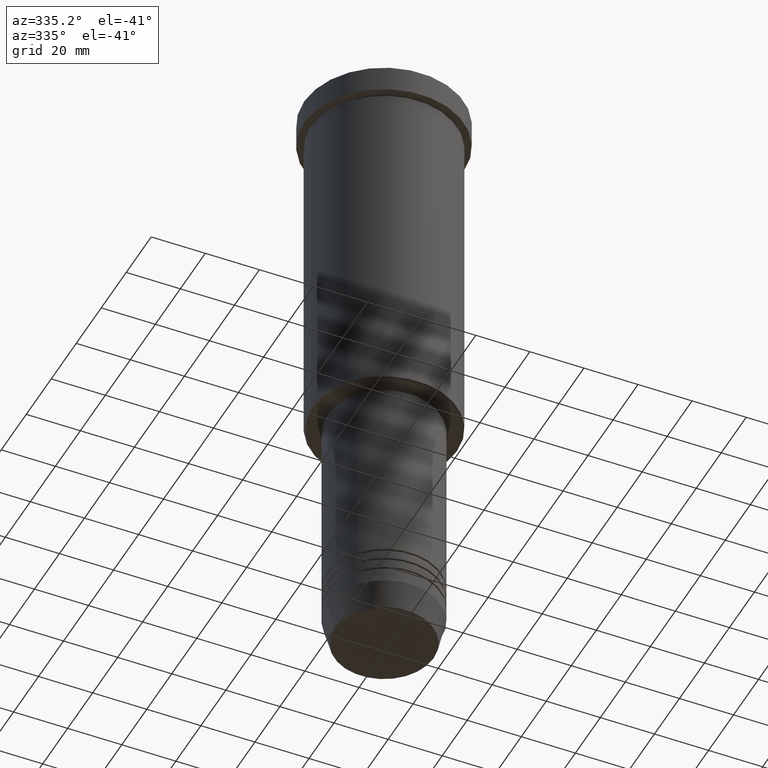
[diagram: clean part render]
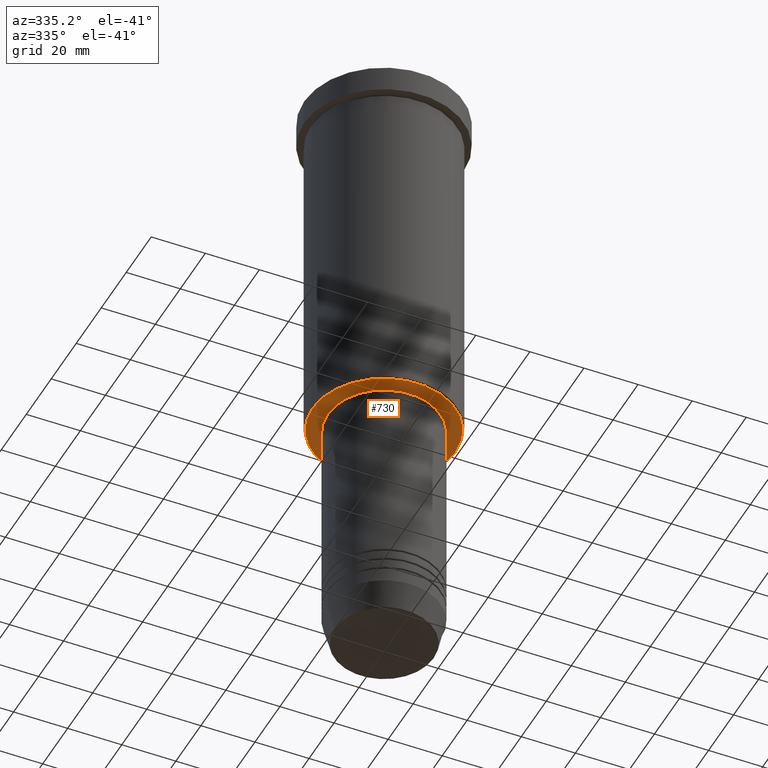
[diagram: same view with one face highlighted and labeled with its STEP entity id]
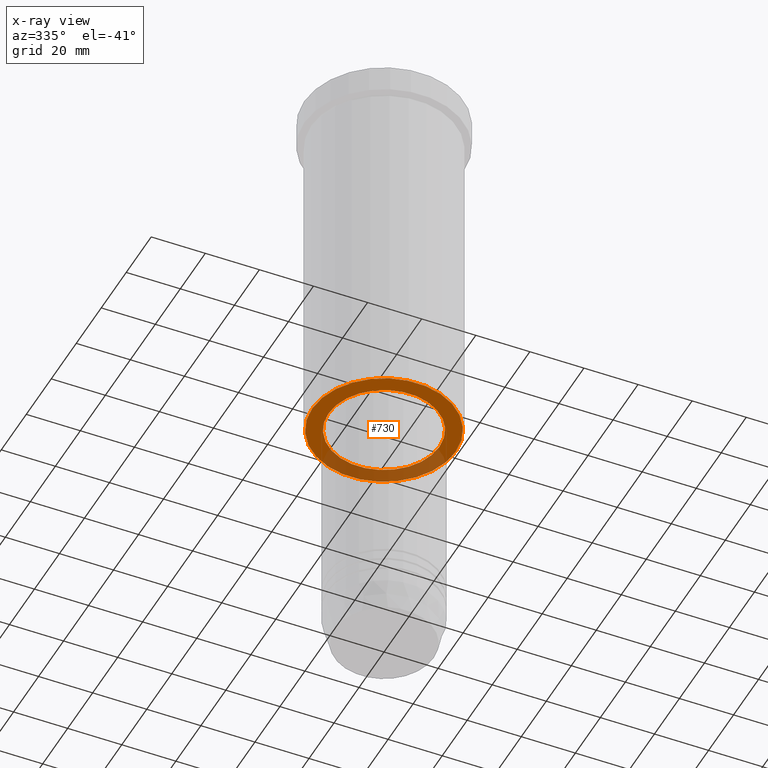
[diagram: x-ray of the same camera — body ghosted, the highlighted face saturated]
A machine part, auxiliary view. The second image highlights one B-rep face of the part: STEP entity #730.
The next image is the same camera in x-ray: the body ghosted, the highlighted face saturated — about 31% of this face is hidden behind the body in this view.
In plain terms, the highlighted planar face has unit normal (0, 0, -1).
Its self-contained STEP definition (entity closure, byte-faithful):
#7 = DIRECTION ( 'NONE',  ( 1.000000000000000000, 0.000000000000000000, 0.000000000000000000 ) ) ;
#13 = CARTESIAN_POINT ( 'NONE',  ( 20.50000000000000000, 0.000000000000000000, -136.0000000000000284 ) ) ;
#36 = VERTEX_POINT ( 'NONE', #189 ) ;
#71 = AXIS2_PLACEMENT_3D ( 'NONE', #987, #75, #7 ) ;
#75 = DIRECTION ( 'NONE',  ( -0.000000000000000000, -0.000000000000000000, 1.000000000000000000 ) ) ;
#86 = CIRCLE ( 'NONE', #936, 26.50000000000002487 ) ;
#90 = CIRCLE ( 'NONE', #71, 20.50000000000000000 ) ;
#109 = DIRECTION ( 'NONE',  ( -1.000000000000000000, 0.000000000000000000, -0.000000000000000000 ) ) ;
#118 = DIRECTION ( 'NONE',  ( -1.000000000000000000, 0.000000000000000000, 0.000000000000000000 ) ) ;
#178 = FACE_BOUND ( 'NONE', #444, .T. ) ;
#189 = CARTESIAN_POINT ( 'NONE',  ( -26.50000000000002487, 3.275930187719171524E-15, -136.0000000000000284 ) ) ;
#233 = EDGE_CURVE ( 'NONE', #36, #529, #86, .T. ) ;
#242 = CIRCLE ( 'NONE', #263, 20.50000000000000000 ) ;
#263 = AXIS2_PLACEMENT_3D ( 'NONE', #769, #1029, #1125 ) ;
#297 = CARTESIAN_POINT ( 'NONE',  ( 26.50000000000002487, 0.000000000000000000, -136.0000000000000284 ) ) ;
#360 = DIRECTION ( 'NONE',  ( 0.000000000000000000, 0.000000000000000000, -1.000000000000000000 ) ) ;
#431 = CARTESIAN_POINT ( 'NONE',  ( 0.000000000000000000, 0.000000000000000000, -136.0000000000000284 ) ) ;
#440 = FACE_OUTER_BOUND ( 'NONE', #641, .T. ) ;
#444 = EDGE_LOOP ( 'NONE', ( #1106, #755 ) ) ;
#529 = VERTEX_POINT ( 'NONE', #297 ) ;
#570 = CARTESIAN_POINT ( 'NONE',  ( 0.000000000000000000, 0.000000000000000000, -136.0000000000000284 ) ) ;
#617 = ORIENTED_EDGE ( 'NONE', *, *, #909, .T. ) ;
#624 = AXIS2_PLACEMENT_3D ( 'NONE', #570, #940, #118 ) ;
#641 = EDGE_LOOP ( 'NONE', ( #617, #1045 ) ) ;
#693 = EDGE_CURVE ( 'NONE', #824, #965, #90, .T. ) ;
#730 = ADVANCED_FACE ( 'NONE', ( #440, #178 ), #1003, .T. ) ;
#755 = ORIENTED_EDGE ( 'NONE', *, *, #693, .T. ) ;
#769 = CARTESIAN_POINT ( 'NONE',  ( 0.000000000000000000, 0.000000000000000000, -136.0000000000000284 ) ) ;
#824 = VERTEX_POINT ( 'NONE', #1023 ) ;
#874 = CIRCLE ( 'NONE', #624, 26.50000000000002487 ) ;
#909 = EDGE_CURVE ( 'NONE', #529, #36, #874, .T. ) ;
#936 = AXIS2_PLACEMENT_3D ( 'NONE', #431, #991, #975 ) ;
#940 = DIRECTION ( 'NONE',  ( 0.000000000000000000, 0.000000000000000000, -1.000000000000000000 ) ) ;
#965 = VERTEX_POINT ( 'NONE', #13 ) ;
#973 = AXIS2_PLACEMENT_3D ( 'NONE', #1102, #360, #109 ) ;
#975 = DIRECTION ( 'NONE',  ( -1.000000000000000000, 0.000000000000000000, 0.000000000000000000 ) ) ;
#987 = CARTESIAN_POINT ( 'NONE',  ( 0.000000000000000000, 0.000000000000000000, -136.0000000000000284 ) ) ;
#991 = DIRECTION ( 'NONE',  ( 0.000000000000000000, 0.000000000000000000, -1.000000000000000000 ) ) ;
#1003 = PLANE ( 'NONE',  #973 ) ;
#1023 = CARTESIAN_POINT ( 'NONE',  ( -20.50000000000000000, 2.510525938252074481E-15, -136.0000000000000284 ) ) ;
#1029 = DIRECTION ( 'NONE',  ( -0.000000000000000000, -0.000000000000000000, 1.000000000000000000 ) ) ;
#1045 = ORIENTED_EDGE ( 'NONE', *, *, #233, .T. ) ;
#1102 = CARTESIAN_POINT ( 'NONE',  ( 0.000000000000000000, 27.00000000000000355, -136.0000000000000284 ) ) ;
#1106 = ORIENTED_EDGE ( 'NONE', *, *, #1169, .T. ) ;
#1125 = DIRECTION ( 'NONE',  ( 1.000000000000000000, 0.000000000000000000, 0.000000000000000000 ) ) ;
#1169 = EDGE_CURVE ( 'NONE', #965, #824, #242, .T. ) ;